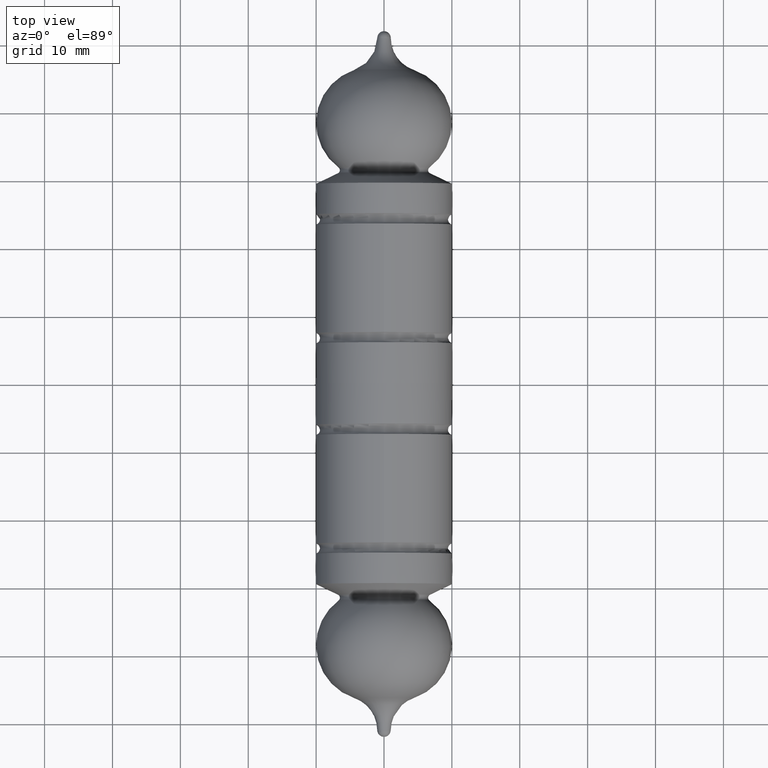
[diagram: clean part render]
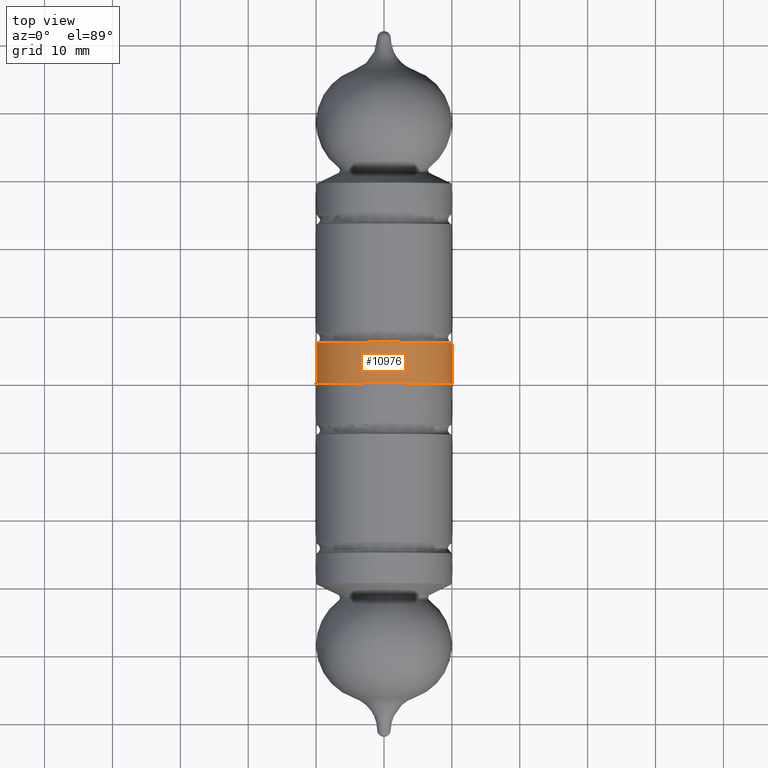
[diagram: same view with one face highlighted and labeled with its STEP entity id]
A machine part, top view. The second image highlights one B-rep face of the part: STEP entity #10976.
In plain terms, the highlighted cylindrical surface (bore or boss wall) has radius 10 mm, axis along (-0, -1, -0).
Its self-contained STEP definition (entity closure, byte-faithful):
#30 = EDGE_LOOP ( 'NONE', ( #5285 ) ) ;
#196 = EDGE_CURVE ( 'NONE', #9086, #9086, #10600, .T. ) ;
#728 = VERTEX_POINT ( 'NONE', #4889 ) ;
#2227 = DIRECTION ( 'NONE',  ( -1.000000000000000000, 2.905941557298773029E-17, -1.074554853473474148E-48 ) ) ;
#3479 = DIRECTION ( 'NONE',  ( -1.109335647967050917E-31, -1.000000000000000000, 3.697785493223511449E-32 ) ) ;
#3930 = CYLINDRICAL_SURFACE ( 'NONE', #5126, 10.00000000000005862 ) ;
#4236 = AXIS2_PLACEMENT_3D ( 'NONE', #9378, #3479, #11335 ) ;
#4889 = CARTESIAN_POINT ( 'NONE',  ( -10.00000000000005862, 2.750266116729215180E-16, -1.016989414894545111E-47 ) ) ;
#5126 = AXIS2_PLACEMENT_3D ( 'NONE', #10256, #8556, #11488 ) ;
#5285 = ORIENTED_EDGE ( 'NONE', *, *, #196, .F. ) ;
#6188 = EDGE_LOOP ( 'NONE', ( #8415 ) ) ;
#6656 = CIRCLE ( 'NONE', #9973, 10.00000000000005862 ) ;
#7259 = FACE_OUTER_BOUND ( 'NONE', #30, .T. ) ;
#8415 = ORIENTED_EDGE ( 'NONE', *, *, #9259, .F. ) ;
#8556 = DIRECTION ( 'NONE',  ( 2.905941557298832194E-17, 1.000000000000000000, -3.697785493223511449E-32 ) ) ;
#9086 = VERTEX_POINT ( 'NONE', #9912 ) ;
#9259 = EDGE_CURVE ( 'NONE', #728, #728, #6656, .T. ) ;
#9378 = CARTESIAN_POINT ( 'NONE',  ( -1.743564934379299809E-16, -6.000000000000001776, 2.218671295934105337E-31 ) ) ;
#9912 = CARTESIAN_POINT ( 'NONE',  ( -1.743564934379299809E-16, -6.000000000000001776, -10.00000000000005862 ) ) ;
#9973 = AXIS2_PLACEMENT_3D ( 'NONE', #11033, #12019, #2227 ) ;
#10256 = CARTESIAN_POINT ( 'NONE',  ( 0.000000000000000000, -0.000000000000000000, 0.000000000000000000 ) ) ;
#10600 = CIRCLE ( 'NONE', #4236, 10.00000000000005862 ) ;
#10976 = ADVANCED_FACE ( 'NONE', ( #12150, #7259 ), #3930, .T. ) ;
#11033 = CARTESIAN_POINT ( 'NONE',  ( -4.523837322019322876E-34, -1.556754405695751060E-17, 5.756543857893534129E-49 ) ) ;
#11335 = DIRECTION ( 'NONE',  ( 0.000000000000000000, 0.000000000000000000, -1.000000000000000000 ) ) ;
#11488 = DIRECTION ( 'NONE',  ( -1.000000000000000000, 2.905941557298773029E-17, -1.074554853473474148E-48 ) ) ;
#12019 = DIRECTION ( 'NONE',  ( 2.905941557298832194E-17, 1.000000000000000000, -3.697785493223511449E-32 ) ) ;
#12150 = FACE_OUTER_BOUND ( 'NONE', #6188, .T. ) ;